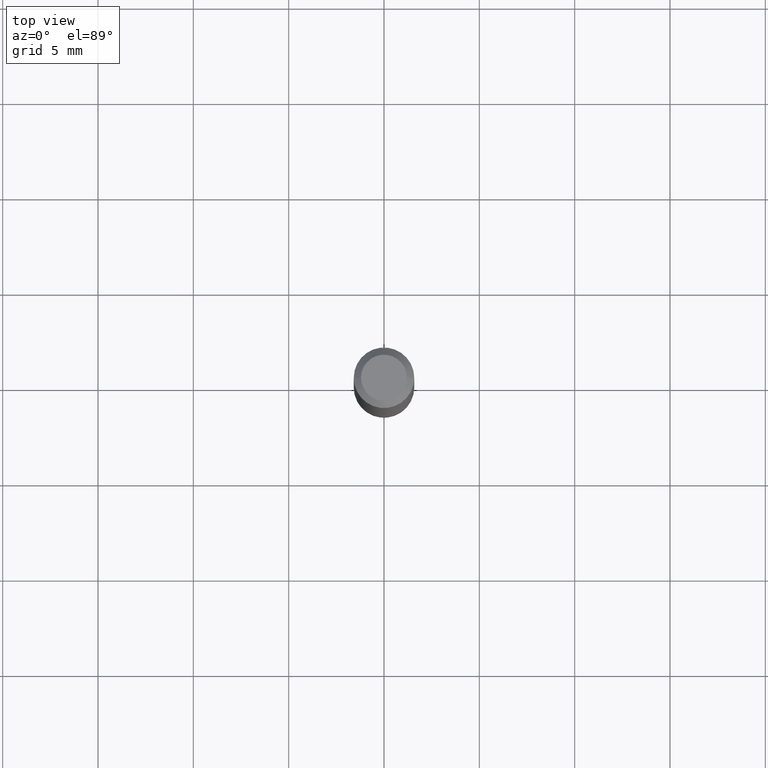
[diagram: clean part render]
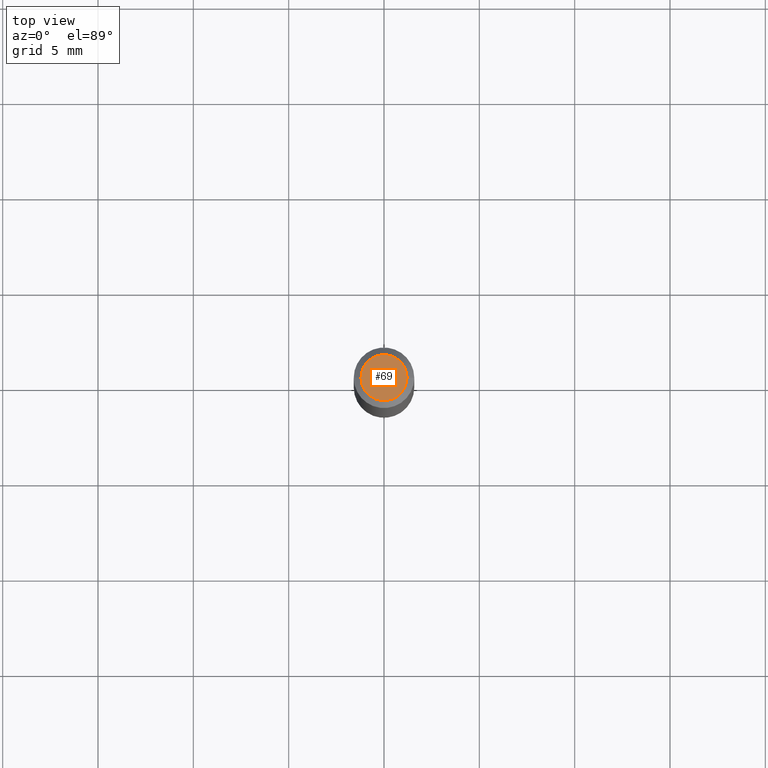
[diagram: same view with one face highlighted and labeled with its STEP entity id]
A machine part, top view. The second image highlights one B-rep face of the part: STEP entity #69.
In plain terms, the highlighted planar face has unit normal (0, -0, -1).
Its self-contained STEP definition (entity closure, byte-faithful):
#4 = AXIS2_PLACEMENT_3D ( 'NONE', #15, #496, #107 ) ;
#15 = CARTESIAN_POINT ( 'NONE',  ( 3.316907271900976589E-16, 0.04750000000000000749, -2.925296391183627249E-17 ) ) ;
#17 = VERTEX_POINT ( 'NONE', #291 ) ;
#25 = CARTESIAN_POINT ( 'NONE',  ( -6.680649051745406845E-45, 9.538196290434862081E-31, 2.731847993664263218E-16 ) ) ;
#50 = DIRECTION ( 'NONE',  ( -2.445468806185136597E-29, 3.491481338843145583E-15, 1.000000000000000000 ) ) ;
#69 = ADVANCED_FACE ( 'NONE', ( #218 ), #414, .F. ) ;
#71 = ORIENTED_EDGE ( 'NONE', *, *, #499, .T. ) ;
#78 = CIRCLE ( 'NONE', #356, 0.04750000000000000749 ) ;
#102 = VERTEX_POINT ( 'NONE', #216 ) ;
#107 = DIRECTION ( 'NONE',  ( -1.000000000000000000, 6.982962677686265922E-15, -4.876176775795935793E-29 ) ) ;
#205 = CIRCLE ( 'NONE', #418, 0.04750000000000000749 ) ;
#209 = DIRECTION ( 'NONE',  ( 1.000000000000000000, -6.982962677686266711E-15, 4.852736867747365086E-29 ) ) ;
#216 = CARTESIAN_POINT ( 'NONE',  ( -0.04750000000000000749, 3.578768372314221353E-16, 2.731847993664239060E-16 ) ) ;
#218 = FACE_OUTER_BOUND ( 'NONE', #247, .T. ) ;
#243 = DIRECTION ( 'NONE',  ( -2.445468806185136597E-29, 3.491481338843145583E-15, 1.000000000000000000 ) ) ;
#247 = EDGE_LOOP ( 'NONE', ( #495, #71 ) ) ;
#291 = CARTESIAN_POINT ( 'NONE',  ( 0.04750000000000000749, -4.035134999187568762E-16, 2.731847993664288856E-16 ) ) ;
#356 = AXIS2_PLACEMENT_3D ( 'NONE', #404, #50, #209 ) ;
#370 = DIRECTION ( 'NONE',  ( 1.000000000000000000, -6.982962677686266711E-15, 4.852736867747365086E-29 ) ) ;
#404 = CARTESIAN_POINT ( 'NONE',  ( -6.680649051745406845E-45, 9.538196290434862081E-31, 2.731847993664263218E-16 ) ) ;
#414 = PLANE ( 'NONE',  #4 ) ;
#418 = AXIS2_PLACEMENT_3D ( 'NONE', #25, #243, #370 ) ;
#479 = EDGE_CURVE ( 'NONE', #102, #17, #78, .T. ) ;
#495 = ORIENTED_EDGE ( 'NONE', *, *, #479, .T. ) ;
#496 = DIRECTION ( 'NONE',  ( 2.438088387897960049E-29, -3.491481338843145188E-15, -1.000000000000000000 ) ) ;
#499 = EDGE_CURVE ( 'NONE', #17, #102, #205, .T. ) ;